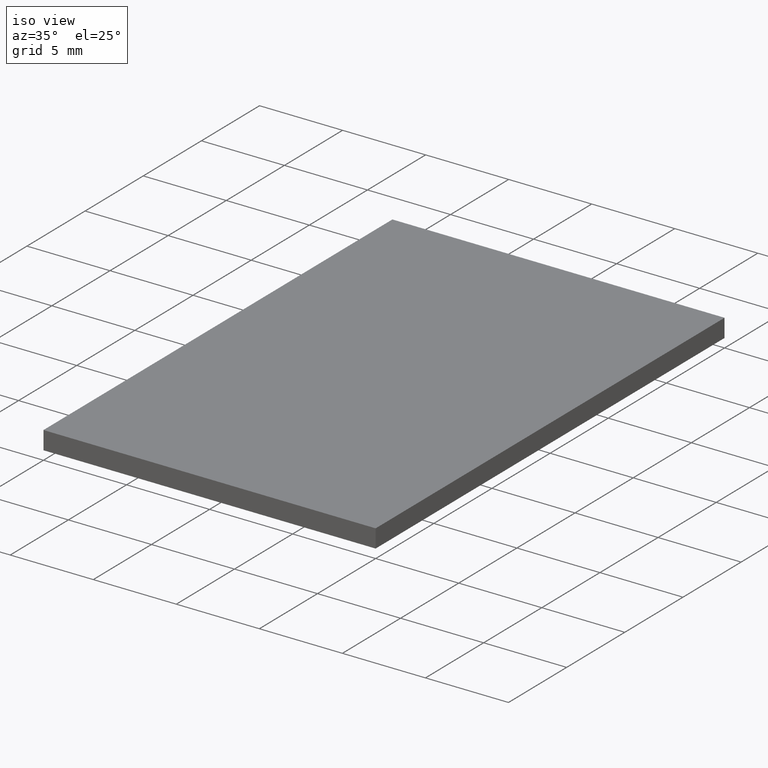
[diagram: clean part render]
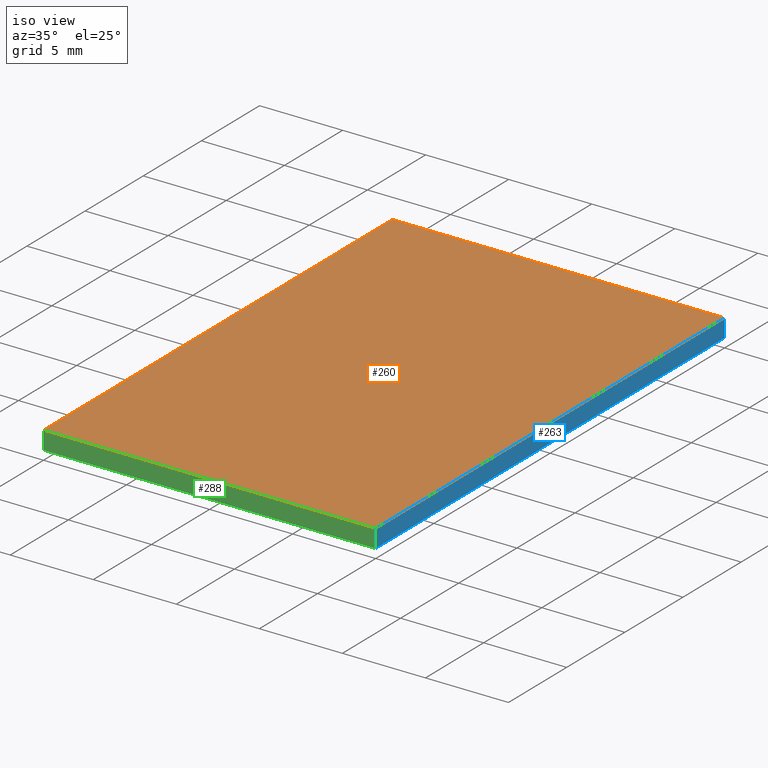
[diagram: same view with three faces highlighted in distinct colors, each labeled with its STEP entity id]
A machine part, iso view with three faces highlighted in distinct colors.
Their STEP definitions:

[orange] entity #260 — the highlighted planar face has unit normal (0, 0, -1).
#2 = VECTOR ( 'NONE', #271, 1000.000000000000000 ) ;
#8 = CARTESIAN_POINT ( 'NONE',  ( -10.00000000000000200, 15.00000000000000400, 1.100000000000000100 ) ) ;
#20 = EDGE_CURVE ( 'NONE', #193, #72, #65, .T. ) ;
#28 = DIRECTION ( 'NONE',  ( 1.000000000000000000, 0.0000000000000000000, 0.0000000000000000000 ) ) ;
#30 = CARTESIAN_POINT ( 'NONE',  ( 9.999999999999998200, 15.00000000000000400, 1.100000000000000100 ) ) ;
#33 = DIRECTION ( 'NONE',  ( -1.000000000000000000, -0.0000000000000000000, -0.0000000000000000000 ) ) ;
#40 = EDGE_CURVE ( 'NONE', #72, #298, #147, .T. ) ;
#65 = LINE ( 'NONE', #274, #2 ) ;
#72 = VERTEX_POINT ( 'NONE', #30 ) ;
#78 = CARTESIAN_POINT ( 'NONE',  ( -10.00000000000000200, -14.99999999999999600, 1.100000000000000100 ) ) ;
#87 = LINE ( 'NONE', #78, #232 ) ;
#91 = EDGE_CURVE ( 'NONE', #298, #120, #87, .T. ) ;
#98 = CARTESIAN_POINT ( 'NONE',  ( 9.999999999999998200, -14.99999999999999600, 1.100000000000000100 ) ) ;
#102 = CARTESIAN_POINT ( 'NONE',  ( -10.00000000000000200, 15.00000000000000400, 1.100000000000000100 ) ) ;
#120 = VERTEX_POINT ( 'NONE', #150 ) ;
#122 = DIRECTION ( 'NONE',  ( 0.0000000000000000000, 0.0000000000000000000, -1.000000000000000000 ) ) ;
#124 = EDGE_CURVE ( 'NONE', #120, #193, #182, .T. ) ;
#147 = LINE ( 'NONE', #102, #273 ) ;
#150 = CARTESIAN_POINT ( 'NONE',  ( -10.00000000000000200, -14.99999999999999600, 1.100000000000000100 ) ) ;
#160 = EDGE_LOOP ( 'NONE', ( #211, #280, #293, #218 ) ) ;
#165 = VECTOR ( 'NONE', #28, 1000.000000000000000 ) ;
#172 = DIRECTION ( 'NONE',  ( -0.0000000000000000000, -1.000000000000000000, -0.0000000000000000000 ) ) ;
#182 = LINE ( 'NONE', #217, #165 ) ;
#183 = FACE_OUTER_BOUND ( 'NONE', #160, .T. ) ;
#193 = VERTEX_POINT ( 'NONE', #98 ) ;
#211 = ORIENTED_EDGE ( 'NONE', *, *, #20, .T. ) ;
#217 = CARTESIAN_POINT ( 'NONE',  ( -10.00000000000000200, -14.99999999999999600, 1.100000000000000100 ) ) ;
#218 = ORIENTED_EDGE ( 'NONE', *, *, #124, .T. ) ;
#232 = VECTOR ( 'NONE', #172, 1000.000000000000000 ) ;
#245 = DIRECTION ( 'NONE',  ( -1.000000000000000000, 0.0000000000000000000, -0.0000000000000000000 ) ) ;
#260 = ADVANCED_FACE ( 'NONE', ( #183 ), #268, .F. ) ;
#268 = PLANE ( 'NONE',  #275 ) ;
#269 = CARTESIAN_POINT ( 'NONE',  ( 0.0000000000000000000, 0.0000000000000000000, 1.100000000000000100 ) ) ;
#271 = DIRECTION ( 'NONE',  ( 0.0000000000000000000, 1.000000000000000000, 0.0000000000000000000 ) ) ;
#273 = VECTOR ( 'NONE', #33, 1000.000000000000000 ) ;
#274 = CARTESIAN_POINT ( 'NONE',  ( 9.999999999999998200, -14.99999999999999600, 1.100000000000000100 ) ) ;
#275 = AXIS2_PLACEMENT_3D ( 'NONE', #269, #122, #245 ) ;
#280 = ORIENTED_EDGE ( 'NONE', *, *, #40, .T. ) ;
#293 = ORIENTED_EDGE ( 'NONE', *, *, #91, .T. ) ;
#298 = VERTEX_POINT ( 'NONE', #8 ) ;

[blue] entity #263 — the highlighted planar face has unit normal (-1, 0, 0).
#2 = VECTOR ( 'NONE', #271, 1000.000000000000000 ) ;
#20 = EDGE_CURVE ( 'NONE', #193, #72, #65, .T. ) ;
#27 = DIRECTION ( 'NONE',  ( -0.0000000000000000000, -0.0000000000000000000, -1.000000000000000000 ) ) ;
#30 = CARTESIAN_POINT ( 'NONE',  ( 9.999999999999998200, 15.00000000000000400, 1.100000000000000100 ) ) ;
#35 = CARTESIAN_POINT ( 'NONE',  ( 9.999999999999998200, 15.00000000000000400, 1.100000000000000100 ) ) ;
#51 = DIRECTION ( 'NONE',  ( -1.000000000000000000, 0.0000000000000000000, 0.0000000000000000000 ) ) ;
#61 = ORIENTED_EDGE ( 'NONE', *, *, #66, .T. ) ;
#65 = LINE ( 'NONE', #274, #2 ) ;
#66 = EDGE_CURVE ( 'NONE', #193, #164, #138, .T. ) ;
#68 = PLANE ( 'NONE',  #173 ) ;
#72 = VERTEX_POINT ( 'NONE', #30 ) ;
#84 = DIRECTION ( 'NONE',  ( 0.0000000000000000000, 1.000000000000000000, 0.0000000000000000000 ) ) ;
#85 = DIRECTION ( 'NONE',  ( 0.0000000000000000000, 0.0000000000000000000, 1.000000000000000000 ) ) ;
#89 = ORIENTED_EDGE ( 'NONE', *, *, #236, .F. ) ;
#98 = CARTESIAN_POINT ( 'NONE',  ( 9.999999999999998200, -14.99999999999999600, 1.100000000000000100 ) ) ;
#101 = CARTESIAN_POINT ( 'NONE',  ( 9.999999999999998200, 15.00000000000000400, 0.0000000000000000000 ) ) ;
#125 = VECTOR ( 'NONE', #84, 1000.000000000000000 ) ;
#138 = LINE ( 'NONE', #145, #187 ) ;
#145 = CARTESIAN_POINT ( 'NONE',  ( 9.999999999999998200, -14.99999999999999600, 1.100000000000000100 ) ) ;
#146 = DIRECTION ( 'NONE',  ( -0.0000000000000000000, -0.0000000000000000000, -1.000000000000000000 ) ) ;
#159 = VERTEX_POINT ( 'NONE', #101 ) ;
#164 = VERTEX_POINT ( 'NONE', #248 ) ;
#173 = AXIS2_PLACEMENT_3D ( 'NONE', #223, #51, #85 ) ;
#187 = VECTOR ( 'NONE', #27, 1000.000000000000000 ) ;
#188 = LINE ( 'NONE', #229, #125 ) ;
#193 = VERTEX_POINT ( 'NONE', #98 ) ;
#198 = EDGE_LOOP ( 'NONE', ( #249, #89, #226, #61 ) ) ;
#223 = CARTESIAN_POINT ( 'NONE',  ( 9.999999999999998200, -14.99999999999999600, 1.100000000000000100 ) ) ;
#226 = ORIENTED_EDGE ( 'NONE', *, *, #20, .F. ) ;
#229 = CARTESIAN_POINT ( 'NONE',  ( 9.999999999999998200, -14.99999999999999600, 0.0000000000000000000 ) ) ;
#236 = EDGE_CURVE ( 'NONE', #72, #159, #285, .T. ) ;
#248 = CARTESIAN_POINT ( 'NONE',  ( 9.999999999999998200, -14.99999999999999600, 0.0000000000000000000 ) ) ;
#249 = ORIENTED_EDGE ( 'NONE', *, *, #309, .T. ) ;
#263 = ADVANCED_FACE ( 'NONE', ( #300 ), #68, .F. ) ;
#265 = VECTOR ( 'NONE', #146, 1000.000000000000000 ) ;
#271 = DIRECTION ( 'NONE',  ( 0.0000000000000000000, 1.000000000000000000, 0.0000000000000000000 ) ) ;
#274 = CARTESIAN_POINT ( 'NONE',  ( 9.999999999999998200, -14.99999999999999600, 1.100000000000000100 ) ) ;
#285 = LINE ( 'NONE', #35, #265 ) ;
#300 = FACE_OUTER_BOUND ( 'NONE', #198, .T. ) ;
#309 = EDGE_CURVE ( 'NONE', #164, #159, #188, .T. ) ;

[green] entity #288 — the highlighted planar face has unit normal (0, 1, 0).
#6 = AXIS2_PLACEMENT_3D ( 'NONE', #301, #53, #303 ) ;
#7 = CARTESIAN_POINT ( 'NONE',  ( -10.00000000000000200, -14.99999999999999600, 1.100000000000000100 ) ) ;
#21 = LINE ( 'NONE', #212, #308 ) ;
#24 = ORIENTED_EDGE ( 'NONE', *, *, #66, .F. ) ;
#27 = DIRECTION ( 'NONE',  ( -0.0000000000000000000, -0.0000000000000000000, -1.000000000000000000 ) ) ;
#28 = DIRECTION ( 'NONE',  ( 1.000000000000000000, 0.0000000000000000000, 0.0000000000000000000 ) ) ;
#53 = DIRECTION ( 'NONE',  ( 0.0000000000000000000, 1.000000000000000000, 0.0000000000000000000 ) ) ;
#60 = DIRECTION ( 'NONE',  ( -0.0000000000000000000, -0.0000000000000000000, -1.000000000000000000 ) ) ;
#66 = EDGE_CURVE ( 'NONE', #193, #164, #138, .T. ) ;
#79 = VECTOR ( 'NONE', #60, 1000.000000000000000 ) ;
#94 = ORIENTED_EDGE ( 'NONE', *, *, #124, .F. ) ;
#98 = CARTESIAN_POINT ( 'NONE',  ( 9.999999999999998200, -14.99999999999999600, 1.100000000000000100 ) ) ;
#100 = FACE_OUTER_BOUND ( 'NONE', #213, .T. ) ;
#113 = LINE ( 'NONE', #7, #79 ) ;
#120 = VERTEX_POINT ( 'NONE', #150 ) ;
#124 = EDGE_CURVE ( 'NONE', #120, #193, #182, .T. ) ;
#138 = LINE ( 'NONE', #145, #187 ) ;
#143 = ORIENTED_EDGE ( 'NONE', *, *, #296, .T. ) ;
#145 = CARTESIAN_POINT ( 'NONE',  ( 9.999999999999998200, -14.99999999999999600, 1.100000000000000100 ) ) ;
#149 = CARTESIAN_POINT ( 'NONE',  ( -10.00000000000000200, -14.99999999999999600, 0.0000000000000000000 ) ) ;
#150 = CARTESIAN_POINT ( 'NONE',  ( -10.00000000000000200, -14.99999999999999600, 1.100000000000000100 ) ) ;
#164 = VERTEX_POINT ( 'NONE', #248 ) ;
#165 = VECTOR ( 'NONE', #28, 1000.000000000000000 ) ;
#170 = PLANE ( 'NONE',  #6 ) ;
#181 = DIRECTION ( 'NONE',  ( 1.000000000000000000, 0.0000000000000000000, 0.0000000000000000000 ) ) ;
#182 = LINE ( 'NONE', #217, #165 ) ;
#187 = VECTOR ( 'NONE', #27, 1000.000000000000000 ) ;
#193 = VERTEX_POINT ( 'NONE', #98 ) ;
#210 = ORIENTED_EDGE ( 'NONE', *, *, #283, .T. ) ;
#212 = CARTESIAN_POINT ( 'NONE',  ( -10.00000000000000200, -14.99999999999999600, 0.0000000000000000000 ) ) ;
#213 = EDGE_LOOP ( 'NONE', ( #210, #24, #94, #143 ) ) ;
#217 = CARTESIAN_POINT ( 'NONE',  ( -10.00000000000000200, -14.99999999999999600, 1.100000000000000100 ) ) ;
#248 = CARTESIAN_POINT ( 'NONE',  ( 9.999999999999998200, -14.99999999999999600, 0.0000000000000000000 ) ) ;
#262 = VERTEX_POINT ( 'NONE', #149 ) ;
#283 = EDGE_CURVE ( 'NONE', #262, #164, #21, .T. ) ;
#288 = ADVANCED_FACE ( 'NONE', ( #100 ), #170, .F. ) ;
#296 = EDGE_CURVE ( 'NONE', #120, #262, #113, .T. ) ;
#301 = CARTESIAN_POINT ( 'NONE',  ( -10.00000000000000200, -14.99999999999999600, 1.100000000000000100 ) ) ;
#303 = DIRECTION ( 'NONE',  ( 0.0000000000000000000, -0.0000000000000000000, 1.000000000000000000 ) ) ;
#308 = VECTOR ( 'NONE', #181, 1000.000000000000000 ) ;